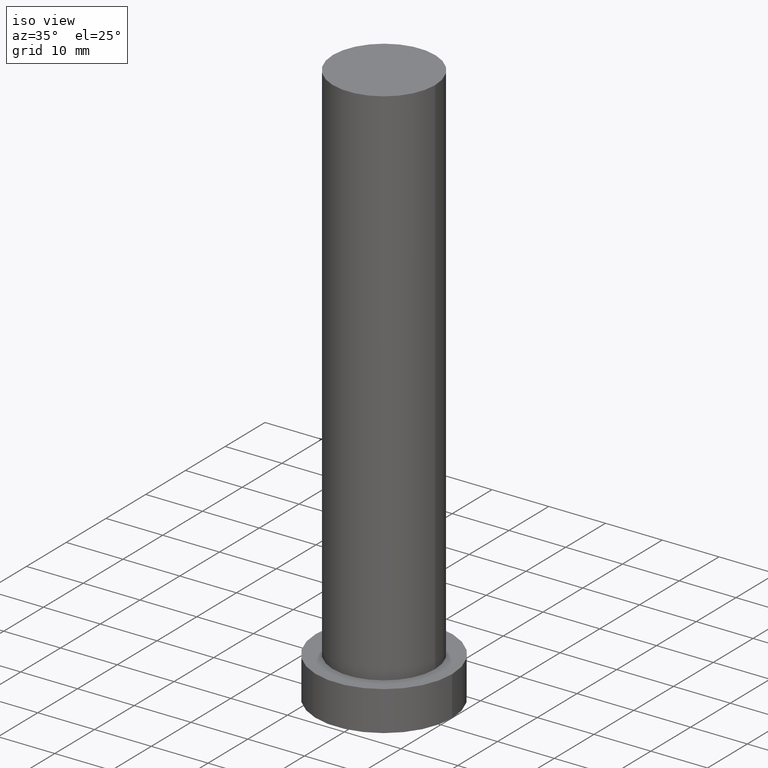
[diagram: clean part render]
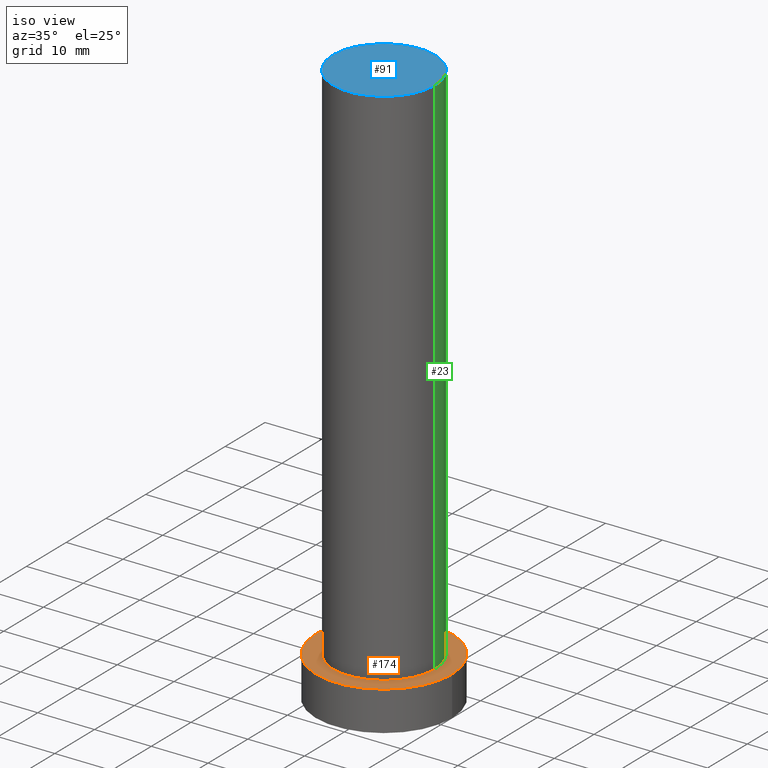
[diagram: same view with three faces highlighted in distinct colors, each labeled with its STEP entity id]
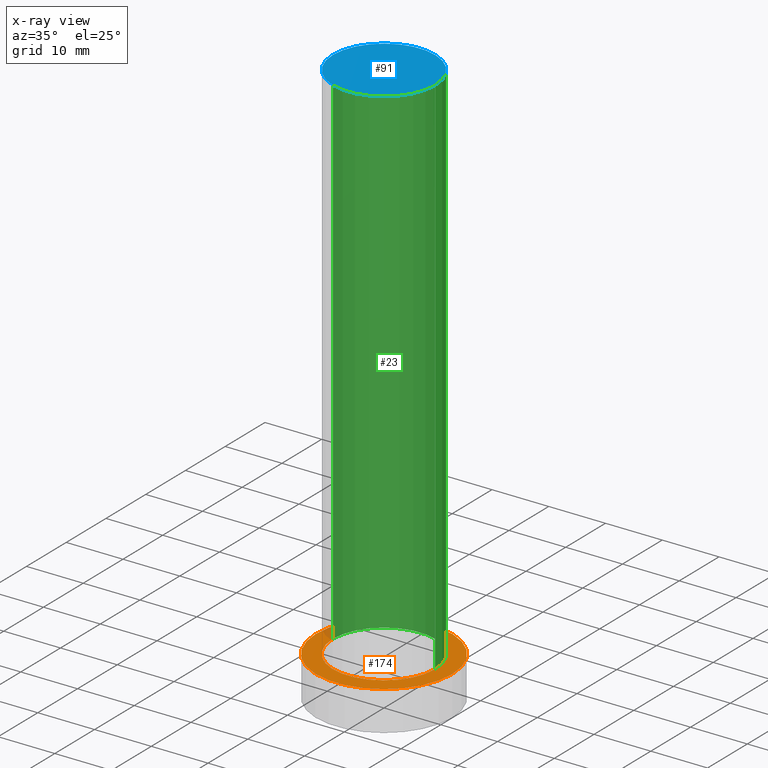
[diagram: x-ray of the same camera — body ghosted, the three highlighted faces saturated]
A machine part, iso view with three faces highlighted in distinct colors.
The next image is the same camera in x-ray (body ghosted, the three faces saturated) — at least one of them is partly hidden behind the body in this view.
Their STEP definitions:

[orange] entity #174 — the highlighted planar face has unit normal (0, 0, 1).
#9 = DIRECTION ( 'NONE',  ( 0.000000000000000000, 0.000000000000000000, 1.000000000000000000 ) ) ;
#28 = DIRECTION ( 'NONE',  ( 0.000000000000000000, 0.000000000000000000, 1.000000000000000000 ) ) ;
#44 = CARTESIAN_POINT ( 'NONE',  ( 0.000000000000000000, 0.000000000000000000, 7.000000000000000000 ) ) ;
#54 = ORIENTED_EDGE ( 'NONE', *, *, #93, .T. ) ;
#55 = VERTEX_POINT ( 'NONE', #59 ) ;
#59 = CARTESIAN_POINT ( 'NONE',  ( 12.00000000000000178, 1.469576158976824144E-15, 7.000000000000000000 ) ) ;
#65 = DIRECTION ( 'NONE',  ( 0.000000000000000000, 0.000000000000000000, 1.000000000000000000 ) ) ;
#67 = DIRECTION ( 'NONE',  ( 1.000000000000000000, 0.000000000000000000, 0.000000000000000000 ) ) ;
#70 = DIRECTION ( 'NONE',  ( 0.000000000000000000, 0.000000000000000000, 1.000000000000000000 ) ) ;
#72 = VERTEX_POINT ( 'NONE', #153 ) ;
#81 = VERTEX_POINT ( 'NONE', #161 ) ;
#82 = CARTESIAN_POINT ( 'NONE',  ( -9.000000000000000000, 0.000000000000000000, 7.000000000000000000 ) ) ;
#83 = FACE_BOUND ( 'NONE', #152, .T. ) ;
#93 = EDGE_CURVE ( 'NONE', #55, #81, #250, .T. ) ;
#98 = DIRECTION ( 'NONE',  ( 1.000000000000000000, 0.000000000000000000, 0.000000000000000000 ) ) ;
#103 = DIRECTION ( 'NONE',  ( 1.000000000000000000, 0.000000000000000000, -0.000000000000000000 ) ) ;
#105 = CIRCLE ( 'NONE', #180, 9.000000000000000000 ) ;
#114 = CIRCLE ( 'NONE', #205, 9.000000000000000000 ) ;
#118 = DIRECTION ( 'NONE',  ( 1.000000000000000000, 0.000000000000000000, 0.000000000000000000 ) ) ;
#119 = AXIS2_PLACEMENT_3D ( 'NONE', #187, #9, #103 ) ;
#123 = DIRECTION ( 'NONE',  ( 1.000000000000000000, 0.000000000000000000, 0.000000000000000000 ) ) ;
#125 = EDGE_CURVE ( 'NONE', #81, #55, #212, .T. ) ;
#131 = EDGE_LOOP ( 'NONE', ( #197, #54 ) ) ;
#139 = AXIS2_PLACEMENT_3D ( 'NONE', #245, #70, #123 ) ;
#140 = FACE_OUTER_BOUND ( 'NONE', #131, .T. ) ;
#149 = CARTESIAN_POINT ( 'NONE',  ( 0.000000000000000000, 0.000000000000000000, 7.000000000000000000 ) ) ;
#152 = EDGE_LOOP ( 'NONE', ( #178, #239 ) ) ;
#153 = CARTESIAN_POINT ( 'NONE',  ( 9.000000000000000000, 1.102182119232617517E-15, 7.000000000000000000 ) ) ;
#159 = EDGE_CURVE ( 'NONE', #246, #72, #114, .T. ) ;
#161 = CARTESIAN_POINT ( 'NONE',  ( -12.00000000000000178, 0.000000000000000000, 7.000000000000000000 ) ) ;
#168 = AXIS2_PLACEMENT_3D ( 'NONE', #149, #204, #118 ) ;
#174 = ADVANCED_FACE ( 'NONE', ( #83, #140 ), #188, .T. ) ;
#178 = ORIENTED_EDGE ( 'NONE', *, *, #159, .F. ) ;
#180 = AXIS2_PLACEMENT_3D ( 'NONE', #44, #28, #98 ) ;
#187 = CARTESIAN_POINT ( 'NONE',  ( 0.000000000000000000, 0.000000000000000000, 7.000000000000000000 ) ) ;
#188 = PLANE ( 'NONE',  #119 ) ;
#190 = CARTESIAN_POINT ( 'NONE',  ( 0.000000000000000000, 0.000000000000000000, 7.000000000000000000 ) ) ;
#197 = ORIENTED_EDGE ( 'NONE', *, *, #125, .T. ) ;
#204 = DIRECTION ( 'NONE',  ( 0.000000000000000000, 0.000000000000000000, 1.000000000000000000 ) ) ;
#205 = AXIS2_PLACEMENT_3D ( 'NONE', #190, #65, #67 ) ;
#212 = CIRCLE ( 'NONE', #168, 12.00000000000000178 ) ;
#234 = EDGE_CURVE ( 'NONE', #72, #246, #105, .T. ) ;
#239 = ORIENTED_EDGE ( 'NONE', *, *, #234, .F. ) ;
#245 = CARTESIAN_POINT ( 'NONE',  ( 0.000000000000000000, 0.000000000000000000, 7.000000000000000000 ) ) ;
#246 = VERTEX_POINT ( 'NONE', #82 ) ;
#250 = CIRCLE ( 'NONE', #139, 12.00000000000000178 ) ;

[blue] entity #91 — the highlighted planar face has unit normal (0, 0, 1).
#8 = CIRCLE ( 'NONE', #39, 9.000000000000000000 ) ;
#37 = DIRECTION ( 'NONE',  ( 1.000000000000000000, 0.000000000000000000, 0.000000000000000000 ) ) ;
#39 = AXIS2_PLACEMENT_3D ( 'NONE', #241, #112, #184 ) ;
#41 = PLANE ( 'NONE',  #102 ) ;
#51 = EDGE_CURVE ( 'NONE', #217, #214, #92, .T. ) ;
#57 = EDGE_CURVE ( 'NONE', #214, #217, #8, .T. ) ;
#68 = CARTESIAN_POINT ( 'NONE',  ( -9.000000000000000000, 0.000000000000000000, 100.0000000000000000 ) ) ;
#74 = ORIENTED_EDGE ( 'NONE', *, *, #51, .T. ) ;
#80 = DIRECTION ( 'NONE',  ( 0.000000000000000000, 0.000000000000000000, 1.000000000000000000 ) ) ;
#85 = AXIS2_PLACEMENT_3D ( 'NONE', #181, #135, #37 ) ;
#91 = ADVANCED_FACE ( 'NONE', ( #167 ), #41, .T. ) ;
#92 = CIRCLE ( 'NONE', #85, 9.000000000000000000 ) ;
#102 = AXIS2_PLACEMENT_3D ( 'NONE', #117, #80, #171 ) ;
#111 = ORIENTED_EDGE ( 'NONE', *, *, #57, .T. ) ;
#112 = DIRECTION ( 'NONE',  ( 0.000000000000000000, 0.000000000000000000, 1.000000000000000000 ) ) ;
#117 = CARTESIAN_POINT ( 'NONE',  ( 0.000000000000000000, 0.000000000000000000, 100.0000000000000000 ) ) ;
#135 = DIRECTION ( 'NONE',  ( 0.000000000000000000, 0.000000000000000000, 1.000000000000000000 ) ) ;
#147 = EDGE_LOOP ( 'NONE', ( #111, #74 ) ) ;
#167 = FACE_OUTER_BOUND ( 'NONE', #147, .T. ) ;
#171 = DIRECTION ( 'NONE',  ( 1.000000000000000000, 0.000000000000000000, -0.000000000000000000 ) ) ;
#181 = CARTESIAN_POINT ( 'NONE',  ( 0.000000000000000000, 0.000000000000000000, 100.0000000000000000 ) ) ;
#184 = DIRECTION ( 'NONE',  ( 1.000000000000000000, 0.000000000000000000, 0.000000000000000000 ) ) ;
#192 = CARTESIAN_POINT ( 'NONE',  ( 9.000000000000000000, 1.102182119232617517E-15, 100.0000000000000000 ) ) ;
#214 = VERTEX_POINT ( 'NONE', #68 ) ;
#217 = VERTEX_POINT ( 'NONE', #192 ) ;
#241 = CARTESIAN_POINT ( 'NONE',  ( 0.000000000000000000, 0.000000000000000000, 100.0000000000000000 ) ) ;

[green] entity #23 — the highlighted cylindrical surface (partial cylindrical patch) has radius 9 mm, axis along (-0, -0, -1).
#3 = EDGE_CURVE ( 'NONE', #214, #246, #176, .T. ) ;
#7 = EDGE_LOOP ( 'NONE', ( #251, #196, #198, #211 ) ) ;
#15 = FACE_OUTER_BOUND ( 'NONE', #7, .T. ) ;
#23 = ADVANCED_FACE ( 'NONE', ( #15 ), #236, .T. ) ;
#28 = DIRECTION ( 'NONE',  ( 0.000000000000000000, 0.000000000000000000, 1.000000000000000000 ) ) ;
#29 = VECTOR ( 'NONE', #121, 1000.000000000000000 ) ;
#37 = DIRECTION ( 'NONE',  ( 1.000000000000000000, 0.000000000000000000, 0.000000000000000000 ) ) ;
#44 = CARTESIAN_POINT ( 'NONE',  ( 0.000000000000000000, 0.000000000000000000, 7.000000000000000000 ) ) ;
#48 = CARTESIAN_POINT ( 'NONE',  ( 0.000000000000000000, 0.000000000000000000, 100.0000000000000000 ) ) ;
#51 = EDGE_CURVE ( 'NONE', #217, #214, #92, .T. ) ;
#68 = CARTESIAN_POINT ( 'NONE',  ( -9.000000000000000000, 0.000000000000000000, 100.0000000000000000 ) ) ;
#72 = VERTEX_POINT ( 'NONE', #153 ) ;
#82 = CARTESIAN_POINT ( 'NONE',  ( -9.000000000000000000, 0.000000000000000000, 7.000000000000000000 ) ) ;
#85 = AXIS2_PLACEMENT_3D ( 'NONE', #181, #135, #37 ) ;
#92 = CIRCLE ( 'NONE', #85, 9.000000000000000000 ) ;
#98 = DIRECTION ( 'NONE',  ( 1.000000000000000000, 0.000000000000000000, 0.000000000000000000 ) ) ;
#100 = CARTESIAN_POINT ( 'NONE',  ( 9.000000000000000000, 1.102182119232617517E-15, 100.0000000000000000 ) ) ;
#104 = DIRECTION ( 'NONE',  ( -0.000000000000000000, -0.000000000000000000, -1.000000000000000000 ) ) ;
#105 = CIRCLE ( 'NONE', #180, 9.000000000000000000 ) ;
#106 = EDGE_CURVE ( 'NONE', #217, #72, #194, .T. ) ;
#121 = DIRECTION ( 'NONE',  ( -0.000000000000000000, -0.000000000000000000, -1.000000000000000000 ) ) ;
#135 = DIRECTION ( 'NONE',  ( 0.000000000000000000, 0.000000000000000000, 1.000000000000000000 ) ) ;
#153 = CARTESIAN_POINT ( 'NONE',  ( 9.000000000000000000, 1.102182119232617517E-15, 7.000000000000000000 ) ) ;
#166 = DIRECTION ( 'NONE',  ( -0.000000000000000000, -0.000000000000000000, -1.000000000000000000 ) ) ;
#176 = LINE ( 'NONE', #249, #247 ) ;
#179 = AXIS2_PLACEMENT_3D ( 'NONE', #48, #166, #195 ) ;
#180 = AXIS2_PLACEMENT_3D ( 'NONE', #44, #28, #98 ) ;
#181 = CARTESIAN_POINT ( 'NONE',  ( 0.000000000000000000, 0.000000000000000000, 100.0000000000000000 ) ) ;
#192 = CARTESIAN_POINT ( 'NONE',  ( 9.000000000000000000, 1.102182119232617517E-15, 100.0000000000000000 ) ) ;
#194 = LINE ( 'NONE', #100, #29 ) ;
#195 = DIRECTION ( 'NONE',  ( -1.000000000000000000, 0.000000000000000000, 0.000000000000000000 ) ) ;
#196 = ORIENTED_EDGE ( 'NONE', *, *, #106, .T. ) ;
#198 = ORIENTED_EDGE ( 'NONE', *, *, #234, .T. ) ;
#211 = ORIENTED_EDGE ( 'NONE', *, *, #3, .F. ) ;
#214 = VERTEX_POINT ( 'NONE', #68 ) ;
#217 = VERTEX_POINT ( 'NONE', #192 ) ;
#234 = EDGE_CURVE ( 'NONE', #72, #246, #105, .T. ) ;
#236 = CYLINDRICAL_SURFACE ( 'NONE', #179, 9.000000000000000000 ) ;
#246 = VERTEX_POINT ( 'NONE', #82 ) ;
#247 = VECTOR ( 'NONE', #104, 1000.000000000000000 ) ;
#249 = CARTESIAN_POINT ( 'NONE',  ( -9.000000000000000000, 0.000000000000000000, 100.0000000000000000 ) ) ;
#251 = ORIENTED_EDGE ( 'NONE', *, *, #51, .F. ) ;